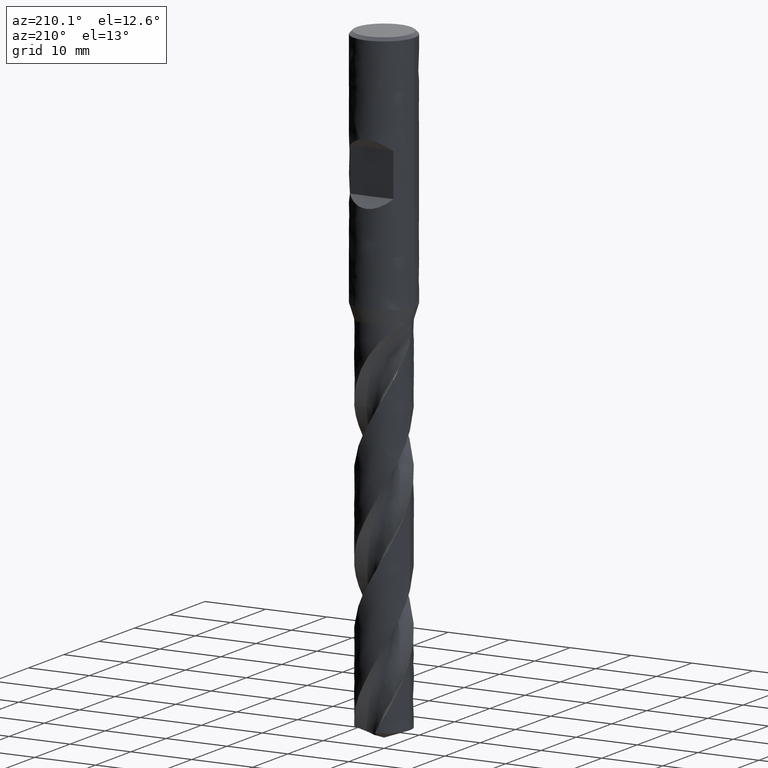
[diagram: clean part render]
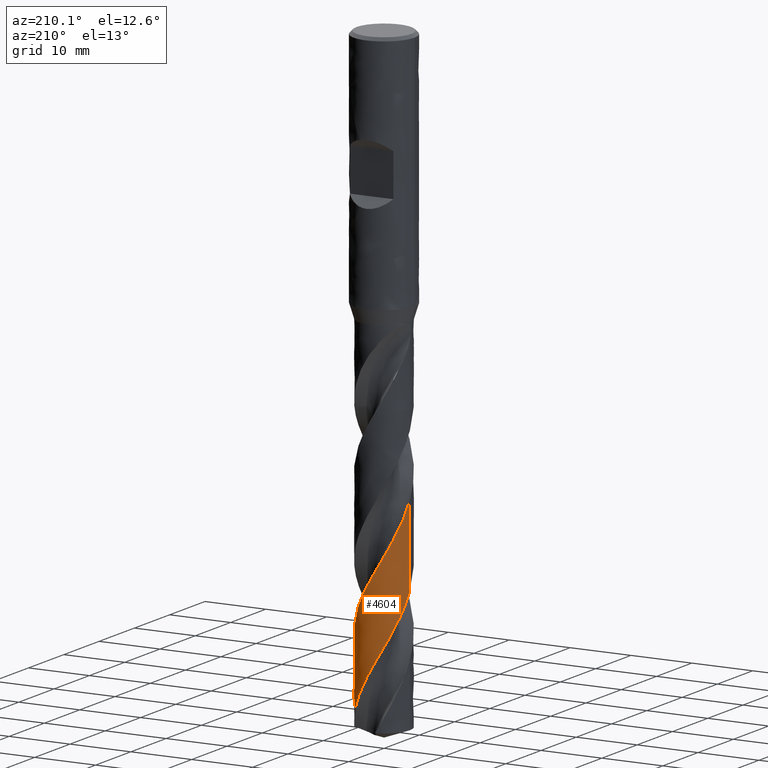
[diagram: same view with one face highlighted and labeled with its STEP entity id]
A machine part, auxiliary view. The second image highlights one B-rep face of the part: STEP entity #4604.
In plain terms, the highlighted face is a freeform B-spline surface patch.
Its self-contained STEP definition (entity closure, byte-faithful):
#3054 = VERTEX_POINT('', #3055);
#3055 = CARTESIAN_POINT('', (-4.25, 5.22805327345434E-15, -81.1305893600395));
#3209 = EDGE_CURVE('', #3210, #3054, #3212, .T.);
#3210 = VERTEX_POINT('', #3211);
#3211 = CARTESIAN_POINT('', (3.88587515378507, 1.72118397889239, -101.453126504369));
#3212 = B_SPLINE_CURVE_WITH_KNOTS('', 3, (#3213, #3214, #3215, #3216, #3217, #3218, #3219, #3220, #3221, #3222, #3223, #3224, #3225, #3226, #3227, #3228, #3229, #3230, #3231, #3232, #3233, #3234, #3235, #3236, #3237, #3238, #3239, #3240, #3241, #3242, #3243, #3244, #3245, #3246, #3247, #3248, #3249, #3250, #3251, #3252, #3253, #3254, #3255, #3256, #3257, #3258, #3259, #3260, #3261, #3262, #3263, #3264, #3265, #3266, #3267, #3268, #3269, #3270, #3271, #3272, #3273, #3274, #3275, #3276, #3277, #3278, #3279, #3280, #3281, #3282, #3283, #3284, #3285, #3286, #3287, #3288, #3289, #3290, #3291, #3292, #3293, #3294, #3295, #3296, #3297, #3298, #3299, #3300, #3301, #3302, #3303, #3304, #3305, #3306, #3307, #3308, #3309, #3310, #3311, #3312, #3313, #3314, #3315, #3316, #3317, #3318, #3319, #3320, #3321, #3322, #3323, #3324, #3325, #3326, #3327), .UNSPECIFIED., .F., .U., (4, 3, 3, 3, 3, 3, 3, 3, 3, 3, 3, 3, 3, 3, 3, 3, 3, 3, 3, 3, 3, 3, 3, 3, 3, 3, 3, 3, 3, 3, 3, 3, 3, 3, 3, 3, 3, 3, 4), (0., 0.6655601584287, 1.33099420303559, 1.99630412872044, 2.66149139599548, 3.32655658142823, 3.99150024516523, 4.65632292994898, 5.32102450195734, 5.98560406963803, 6.6500608517937, 7.31439387238585, 7.97860141746248, 8.64268104507377, 9.30663044948344, 9.74945735172696, 9.88077547496875, 9.93915482224495, 10.6054444018189, 11.271589255999, 11.9375941498602, 12.6034630905537, 13.2691991823351, 13.9348050921684, 14.6002834320381, 15.2656361838329, 15.9308645727825, 16.5959696531068, 17.2609523807694, 17.9258131228018, 18.5905515671618, 19.2551673747418, 19.9196599905109, 20.5840282414016, 21.2482703100889, 21.9123843692508, 22.5763682056284, 23.2402188812332, 23.3886577294178), .UNSPECIFIED.);
#3213 = CARTESIAN_POINT('', (3.88587515378508, 1.72118397889238, -101.453126504369));
#3214 = CARTESIAN_POINT('', (3.84147167729333, 1.82143262642628, -101.260260061237));
#3215 = CARTESIAN_POINT('', (3.79317585115278, 1.91998458950204, -101.067361202989));
#3216 = CARTESIAN_POINT('', (3.74114831494924, 2.01650918310642, -100.874500986124));
#3217 = CARTESIAN_POINT('', (3.68913063719553, 2.11301548672566, -100.681677313422));
#3218 = CARTESIAN_POINT('', (3.63336424937763, 2.20752936555173, -100.488821101133));
#3219 = CARTESIAN_POINT('', (3.57403470312025, 2.29973388479889, -100.296003555866));
#3220 = CARTESIAN_POINT('', (3.51471622320277, 2.39192120575926, -100.103221975555));
#3221 = CARTESIAN_POINT('', (3.45181447202794, 2.48183326417854, -99.9104083125711));
#3222 = CARTESIAN_POINT('', (3.38553994746635, 2.5691670370199, -99.7176327398753));
#3223 = CARTESIAN_POINT('', (3.31927764146257, 2.65648470876117, -99.5248927078265));
#3224 = CARTESIAN_POINT('', (3.24961897769654, 2.74125773786156, -99.3321208839621));
#3225 = CARTESIAN_POINT('', (3.17679749711592, 2.82319989769022, -99.1393871210712));
#3226 = CARTESIAN_POINT('', (3.10398938146416, 2.90512701867144, -98.9466887306145));
#3227 = CARTESIAN_POINT('', (3.02799299265399, 2.98425433603813, -98.7539580071462));
#3228 = CARTESIAN_POINT('', (2.94906185288974, 3.06031602744399, -98.5612659242325));
#3229 = CARTESIAN_POINT('', (2.87014513554026, 3.13636382074494, -98.3686090503016));
#3230 = CARTESIAN_POINT('', (2.78826680882801, 3.20937402731646, -98.1759196780348));
#3231 = CARTESIAN_POINT('', (2.70370004929082, 3.27910140792639, -97.9832688493559));
#3232 = CARTESIAN_POINT('', (2.6191486757158, 3.34881610243075, -97.790653071309));
#3233 = CARTESIAN_POINT('', (2.53187905301217, 3.41527449179696, -97.5980053265237));
#3234 = CARTESIAN_POINT('', (2.44218393179411, 3.47825209599401, -97.4053955709162));
#3235 = CARTESIAN_POINT('', (2.35250515060974, 3.5412182273689, -97.2128209036151));
#3236 = CARTESIAN_POINT('', (2.26036816523864, 3.60072842708272, -97.0202143958568));
#3237 = CARTESIAN_POINT('', (2.16608202500166, 3.65658155398792, -96.8276460392785));
#3238 = CARTESIAN_POINT('', (2.07181319075226, 3.71242442918998, -96.6351130281452));
#3239 = CARTESIAN_POINT('', (1.97536184908148, 3.76463185516935, -96.4425475951029));
#3240 = CARTESIAN_POINT('', (1.87704990379057, 3.81302814816254, -96.2500208166142));
#3241 = CARTESIAN_POINT('', (1.77875612228983, 3.86141549961655, -96.0575296087368));
#3242 = CARTESIAN_POINT('', (1.67856757055701, 3.90601026991375, -95.8650060023158));
#3243 = CARTESIAN_POINT('', (1.57681911200931, 3.94666206914175, -95.6725208060663));
#3244 = CARTESIAN_POINT('', (1.47508960510549, 3.98730629657521, -95.480071462064));
#3245 = CARTESIAN_POINT('', (1.37176344807089, 4.0240238833496, -95.2875902486712));
#3246 = CARTESIAN_POINT('', (1.26718771623984, 4.05669018928128, -95.0951469464385));
#3247 = CARTESIAN_POINT('', (1.16263173608974, 4.08935032538329, -94.9027399918233));
#3248 = CARTESIAN_POINT('', (1.05678755131972, 4.11797294132513, -94.7103011374636));
#3249 = CARTESIAN_POINT('', (0.950010105623939, 4.14246071788406, -94.5179005149347));
#3250 = CARTESIAN_POINT('', (0.843253223832179, 4.16694377842564, -94.3255369461853));
#3251 = CARTESIAN_POINT('', (0.735525058794706, 4.18730243842663, -94.1331409144592));
#3252 = CARTESIAN_POINT('', (0.627185245608721, 4.20346745767004, -93.9407835083708));
#3253 = CARTESIAN_POINT('', (0.518866677401123, 4.21962930702165, -93.7484638227548));
#3254 = CARTESIAN_POINT('', (0.409898136204946, 4.23160488924429, -93.5561118575384));
#3255 = CARTESIAN_POINT('', (0.300644353028747, 4.23935289554814, -93.3637981598243));
#3256 = CARTESIAN_POINT('', (0.227776580212056, 4.24452049658417, -93.2355328455517));
#3257 = CARTESIAN_POINT('', (0.154766974334746, 4.24780935579685, -93.1072585898276));
#3258 = CARTESIAN_POINT('', (0.0817247534192712, 4.24921417025297, -92.9789960944471));
#3259 = CARTESIAN_POINT('', (0.0600644447988226, 4.24963076101777, -92.9409604871017));
#3260 = CARTESIAN_POINT('', (0.038400597579339, 4.24988173400344, -92.9029247202182));
#3261 = CARTESIAN_POINT('', (0.0167360728423578, 4.24996704738588, -92.8648893283697));
#3262 = CARTESIAN_POINT('', (0.00710479894069359, 4.25000497466856, -92.8479801516719));
#3263 = CARTESIAN_POINT('', (-0.00252665368300172, 4.25001016238064, -92.8310709716408));
#3264 = CARTESIAN_POINT('', (-0.0121580377130293, 4.24998260962548, -92.8141618375839));
#3265 = CARTESIAN_POINT('', (-0.12208202822496, 4.24966814715705, -92.6211761269273));
#3266 = CARTESIAN_POINT('', (-0.232019546891489, 4.24508572011335, -92.4281579834897));
#3267 = CARTESIAN_POINT('', (-0.341599482988401, 4.23624949610174, -92.2351786430293));
#3268 = CARTESIAN_POINT('', (-0.451155617123088, 4.22741519141476, -92.0422412197951));
#3269 = CARTESIAN_POINT('', (-0.560393699105498, 4.21432578907006, -91.8492709483719));
#3270 = CARTESIAN_POINT('', (-0.66894601684718, 4.1970240917279, -91.6563396488582));
#3271 = CARTESIAN_POINT('', (-0.777475527211585, 4.17972602955767, -91.4634488851619));
#3272 = CARTESIAN_POINT('', (-0.885358870418918, 4.15821113843973, -91.2705256419272));
#3273 = CARTESIAN_POINT('', (-0.992231467612793, 4.13255087260629, -91.0776409016793));
#3274 = CARTESIAN_POINT('', (-1.09908224864846, 4.10689584486413, -90.8847955354535));
#3275 = CARTESIAN_POINT('', (-1.20496276674783, 4.07708748860004, -90.6919180422462));
#3276 = CARTESIAN_POINT('', (-1.30951430151274, 4.0432254814855, -90.4990788704382));
#3277 = CARTESIAN_POINT('', (-1.41404497698118, 4.00937023025118, -90.3062781723787));
#3278 = CARTESIAN_POINT('', (-1.51728606465527, 3.97145039970379, -90.1134449718058));
#3279 = CARTESIAN_POINT('', (-1.61888921766547, 3.92959256169473, -89.920650599435));
#3280 = CARTESIAN_POINT('', (-1.72047250259798, 3.88774290881332, -89.7278939272088));
#3281 = CARTESIAN_POINT('', (-1.82045494610716, 3.84194178659669, -89.5351044679507));
#3282 = CARTESIAN_POINT('', (-1.91849971470104, 3.79234213180879, -89.3423538790853));
#3283 = CARTESIAN_POINT('', (-2.01652569204416, 3.74275198328589, -89.1496402327789));
#3284 = CARTESIAN_POINT('', (-2.11265045215871, 3.68934664454856, -88.9568942163279));
#3285 = CARTESIAN_POINT('', (-2.20654876642511, 3.63230540309978, -88.7641865935176));
#3286 = CARTESIAN_POINT('', (-2.30042936034237, 3.57527492638859, -88.571515338201));
#3287 = CARTESIAN_POINT('', (-2.3921196029528, 3.5145884895419, -88.3788119429369));
#3288 = CARTESIAN_POINT('', (-2.48130885041586, 3.45045017191206, -88.1861469275293));
#3289 = CARTESIAN_POINT('', (-2.57048142728044, 3.38632384254505, -87.99351792365));
#3290 = CARTESIAN_POINT('', (-2.65718681895414, 3.31872333235241, -87.8008563298387));
#3291 = CARTESIAN_POINT('', (-2.74113248987201, 3.24787510119587, -87.6082335892435));
#3292 = CARTESIAN_POINT('', (-2.82506260038166, 3.17704000266889, -87.415646553747));
#3293 = CARTESIAN_POINT('', (-2.90626411775952, 3.10293298071058, -87.2230268065109));
#3294 = CARTESIAN_POINT('', (-2.98446307925108, 3.02580239417368, -87.0304458211647));
#3295 = CARTESIAN_POINT('', (-3.06264765526981, 2.94868599657148, -86.8379002629967));
#3296 = CARTESIAN_POINT('', (-3.13785944110473, 2.86851881944986, -86.6453224330539));
#3297 = CARTESIAN_POINT('', (-3.20984353493535, 2.78557076399681, -86.4527829072194));
#3298 = CARTESIAN_POINT('', (-3.28181442387404, 2.70263792468457, -86.2602787011826));
#3299 = CARTESIAN_POINT('', (-3.35058584042789, 2.61689407621499, -86.0677423220228));
#3300 = CARTESIAN_POINT('', (-3.41592463060593, 2.52862787258619, -85.8752443900133));
#3301 = CARTESIAN_POINT('', (-3.48125140205365, 2.44037790506606, -85.6827818669964));
#3302 = CARTESIAN_POINT('', (-3.5431707183187, 2.34957427882847, -85.4902866922242));
#3303 = CARTESIAN_POINT('', (-3.60147342754894, 2.25652147134897, -85.29783037064));
#3304 = CARTESIAN_POINT('', (-3.65976538058388, 2.16348583106775, -85.1054095550864));
#3305 = CARTESIAN_POINT('', (-3.71446299498487, 2.06816840692601, -84.912956117848));
#3306 = CARTESIAN_POINT('', (-3.76538120359342, 1.97088923880197, -84.7205413266009));
#3307 = CARTESIAN_POINT('', (-3.81628997410818, 1.87362810214325, -84.5281622009614));
#3308 = CARTESIAN_POINT('', (-3.86343950708983, 1.77437001061298, -84.3357508881505));
#3309 = CARTESIAN_POINT('', (-3.90666948052005, 1.67344960186234, -84.1433778128615));
#3310 = CARTESIAN_POINT('', (-3.94989136312991, 1.57254808113855, -83.9510407416659));
#3311 = CARTESIAN_POINT('', (-3.98921137882842, 1.46994702013481, -83.7586714521302));
#3312 = CARTESIAN_POINT('', (-4.02449577894807, 1.36599184669208, -83.5663406693638));
#3313 = CARTESIAN_POINT('', (-4.05977347756843, 1.26205641725853, -83.3740464156187));
#3314 = CARTESIAN_POINT('', (-4.09102994313231, 1.15672963895376, -83.1817194877938));
#3315 = CARTESIAN_POINT('', (-4.11815901419728, 1.05036485745945, -82.9894313802684));
#3316 = CARTESIAN_POINT('', (-4.14528285707861, 0.944020574072443, -82.797180329579));
#3317 = CARTESIAN_POINT('', (-4.16829065620531, 0.836600337168438, -82.6048967612582));
#3318 = CARTESIAN_POINT('', (-4.18710380718945, 0.728465309963209, -82.4126517166035));
#3319 = CARTESIAN_POINT('', (-4.20591326919748, 0.620351486411354, -82.2204443683122));
#3320 = CARTESIAN_POINT('', (-4.22053668127954, 0.511482993998187, -82.0282048997079));
#3321 = CARTESIAN_POINT('', (-4.2309234622906, 0.402227120218581, -81.8360036295089));
#3322 = CARTESIAN_POINT('', (-4.24130816025126, 0.292993157509397, -81.6438409049316));
#3323 = CARTESIAN_POINT('', (-4.24746183158766, 0.183331131058214, -81.4516459068292));
#3324 = CARTESIAN_POINT('', (-4.24936248763735, 0.0736101124929623, -81.2594894630927));
#3325 = CARTESIAN_POINT('', (-4.24978747958987, 0.0490761891032939, -81.2165227505055));
#3326 = CARTESIAN_POINT('', (-4.25, 0.0245381008733497, -81.1735557889244));
#3327 = CARTESIAN_POINT('', (-4.25, 4.45176451795472E-15, -81.1305893600395));
#3519 = VERTEX_POINT('', #3520);
#3520 = CARTESIAN_POINT('', (-4.25, 4.41977903570237E-15, -67.9304693202904));
#3584 = EDGE_CURVE('', #3519, #3054, #3585, .T.);
#3585 = LINE('', #3586, #3587);
#3586 = CARTESIAN_POINT('', (-4.25, 4.41977903570237E-15, -67.9304693202904));
#3587 = VECTOR('', #3588, 13.2001200397491);
#3588 = DIRECTION('', (0., 8.08274237751978E-16, -13.2001200397491));
#3680 = VERTEX_POINT('', #3681);
#3681 = CARTESIAN_POINT('', (0.912053588516359, -4.15098280551418, -101.453126504369));
#3805 = EDGE_CURVE('', #3806, #3680, #3808, .T.);
#3806 = VERTEX_POINT('', #3807);
#3807 = CARTESIAN_POINT('', (1.62357439669159, -3.9276591219717, -100.134753271127));
#3808 = B_SPLINE_CURVE_WITH_KNOTS('', 3, (#3809, #3810, #3811, #3812, #3813, #3814, #3815, #3816, #3817, #3818), .UNSPECIFIED., .F., .U., (4, 3, 3, 4), (0., 0.664360879611486, 1.32859889209631, 1.51506820967731), .UNSPECIFIED.);
#3809 = CARTESIAN_POINT('', (1.6235743966916, -3.92765912197169, -100.134753271127));
#3810 = CARTESIAN_POINT('', (1.52270124714659, -3.96935700303239, -100.327438514782));
#3811 = CARTESIAN_POINT('', (1.42020886629654, -4.00717085008376, -100.520162407009));
#3812 = CARTESIAN_POINT('', (1.31643699075408, -4.04097681871278, -100.71285455277));
#3813 = CARTESIAN_POINT('', (1.21268430681752, -4.07477653525449, -100.90551106198));
#3814 = CARTESIAN_POINT('', (1.10761537849526, -4.10458191950354, -101.098205261086));
#3815 = CARTESIAN_POINT('', (1.00158048039, -4.13029497025349, -101.290868205651));
#3816 = CARTESIAN_POINT('', (0.971813657778482, -4.13751330906601, -101.344953830263));
#3817 = CARTESIAN_POINT('', (0.941968790556219, -4.14440983986966, -101.399040464185));
#3818 = CARTESIAN_POINT('', (0.912053588516358, -4.15098280551418, -101.453126504369));
#4396 = EDGE_CURVE('', #3210, #3680, #4397, .T.);
#4397 = CIRCLE('', #4398, 4.25);
#4398 = AXIS2_PLACEMENT_3D('', #4399, #4400, #4401);
#4399 = CARTESIAN_POINT('', (3.80388297391395E-31, 6.21221233185333E-15, -101.453126504369));
#4400 = DIRECTION('', (3.74939945665464E-33, 6.12323399573677E-17, -1.));
#4401 = DIRECTION('', (-1., 6.12323399573677E-17, 0.));
#4604 = ADVANCED_FACE('', (#4605), #4786, .T.);
#4605 = FACE_OUTER_BOUND('', #4606, .T.);
#4606 = EDGE_LOOP('', (#4607, #4608, #4609, #4610, #4611));
#4607 = ORIENTED_EDGE('', *, *, #3805, .T.);
#4608 = ORIENTED_EDGE('', *, *, #4396, .F.);
#4609 = ORIENTED_EDGE('', *, *, #3209, .T.);
#4610 = ORIENTED_EDGE('', *, *, #3584, .F.);
#4611 = ORIENTED_EDGE('', *, *, #4612, .F.);
#4612 = EDGE_CURVE('', #3806, #3519, #4613, .T.);
#4613 = B_SPLINE_CURVE_WITH_KNOTS('', 3, (#4614, #4615, #4616, #4617, #4618, #4619, #4620, #4621, #4622, #4623, #4624, #4625, #4626, #4627, #4628, #4629, #4630, #4631, #4632, #4633, #4634, #4635, #4636, #4637, #4638, #4639, #4640, #4641, #4642, #4643, #4644, #4645, #4646, #4647, #4648, #4649, #4650, #4651, #4652, #4653, #4654, #4655, #4656, #4657, #4658, #4659, #4660, #4661, #4662, #4663, #4664, #4665, #4666, #4667, #4668, #4669, #4670, #4671, #4672, #4673, #4674, #4675, #4676, #4677, #4678, #4679, #4680, #4681, #4682, #4683, #4684, #4685, #4686, #4687, #4688, #4689, #4690, #4691, #4692, #4693, #4694, #4695, #4696, #4697, #4698, #4699, #4700, #4701, #4702, #4703, #4704, #4705, #4706, #4707, #4708, #4709, #4710, #4711, #4712, #4713, #4714, #4715, #4716, #4717, #4718, #4719, #4720, #4721, #4722, #4723, #4724, #4725, #4726, #4727, #4728, #4729, #4730, #4731, #4732, #4733, #4734, #4735, #4736, #4737, #4738, #4739, #4740, #4741, #4742, #4743, #4744, #4745, #4746, #4747, #4748, #4749, #4750, #4751, #4752, #4753, #4754, #4755, #4756, #4757, #4758, #4759, #4760, #4761, #4762, #4763, #4764, #4765, #4766, #4767, #4768, #4769, #4770, #4771, #4772, #4773, #4774, #4775, #4776, #4777, #4778, #4779, #4780, #4781, #4782, #4783, #4784, #4785), .UNSPECIFIED., .F., .U., (4, 3, 3, 3, 3, 3, 3, 3, 3, 3, 3, 3, 3, 3, 3, 3, 3, 3, 3, 3, 3, 3, 3, 3, 3, 3, 3, 3, 3, 3, 3, 3, 3, 3, 3, 3, 3, 3, 3, 3, 3, 3, 3, 3, 3, 3, 3, 3, 3, 3, 3, 3, 3, 3, 3, 3, 3, 4), (0., 0.998717161088281, 1.99701239495678, 2.99489483423727, 3.99237056229692, 4.98944264723916, 5.6541274414885, 6.31869106199591, 6.98313242369546, 7.64745047299626, 8.31164347996099, 8.97570890488399, 9.63964417328491, 10.0824646298226, 10.1408405294592, 10.1992306804518, 10.8655097462005, 11.5316453456729, 12.1976420997634, 12.8635038744501, 13.5292336562674, 14.1948340520746, 14.8603075601392, 15.5256560546639, 16.1908806747462, 16.855982427048, 17.5209621718301, 18.1858201851151, 18.850556087071, 19.5151694871304, 20.1796597443129, 20.8440255992789, 21.5082651725863, 22.1723765758943, 22.8363575084999, 23.500204939194, 23.6315224706114, 23.7629393462979, 24.4292130514932, 25.0953418965923, 25.7613303577232, 26.4271823261034, 27.0929009338328, 27.758488708782, 28.4239480095821, 29.0892807358236, 29.7544881506633, 30.4195711045422, 31.0845303266654, 31.7493661160713, 32.4140781693337, 33.0786658835961, 33.7431284815064, 34.4074647145177, 35.0716727058523, 35.7357502989421, 36.3996950365671, 37.068575013576), .UNSPECIFIED.);
#4614 = CARTESIAN_POINT('', (1.62357439669159, -3.9276591219717, -100.134753271127));
#4615 = CARTESIAN_POINT('', (1.77521448965213, -3.86497573606751, -99.8450943441306));
#4616 = CARTESIAN_POINT('', (1.92329891267825, -3.79346275064699, -99.5553290613398));
#4617 = CARTESIAN_POINT('', (2.06671485026814, -3.71364911208386, -99.265695032616));
#4618 = CARTESIAN_POINT('', (2.21007019904453, -3.63386919232313, -98.9761833653427));
#4619 = CARTESIAN_POINT('', (2.34887472825152, -3.54573228332751, -98.6865655532745));
#4620 = CARTESIAN_POINT('', (2.48208390326255, -3.4498926790793, -98.3970786225547));
#4621 = CARTESIAN_POINT('', (2.61523799634526, -3.35409270446028, -98.1077113945382));
#4622 = CARTESIAN_POINT('', (2.74290817738388, -3.2505194353523, -97.8182385472551));
#4623 = CARTESIAN_POINT('', (2.86413135096166, -3.13994452250968, -97.5288958937642));
#4624 = CARTESIAN_POINT('', (2.98530511709125, -3.029414677158, -97.2396711688981));
#4625 = CARTESIAN_POINT('', (3.10013595982801, -2.91179862584432, -96.9503414327086));
#4626 = CARTESIAN_POINT('', (3.20775540690248, -2.78797511636812, -96.6611413931206));
#4627 = CARTESIAN_POINT('', (3.31533130419636, -2.66420171388298, -96.3720583825511));
#4628 = CARTESIAN_POINT('', (3.41579017024224, -2.53412396576637, -96.0828705611228));
#4629 = CARTESIAN_POINT('', (3.508370865856, -2.39871504510495, -95.7938123406097));
#4630 = CARTESIAN_POINT('', (3.57008855061001, -2.3084464958911, -95.6011155369087));
#4631 = CARTESIAN_POINT('', (3.62833696643498, -2.21576908298273, -95.4083898102915));
#4632 = CARTESIAN_POINT('', (3.68291877861346, -2.12099252005667, -95.2157041319332));
#4633 = CARTESIAN_POINT('', (3.73749064038765, -2.026233235141, -95.0230535806681));
#4634 = CARTESIAN_POINT('', (3.78841719390325, -1.92934105119955, -94.8303733281425));
#4635 = CARTESIAN_POINT('', (3.83552689531172, -1.83063743962053, -94.6377339807276));
#4636 = CARTESIAN_POINT('', (3.88262793001658, -1.73195198640214, -94.4451300728947));
#4637 = CARTESIAN_POINT('', (3.92592984738043, -1.63142156450254, -94.252496191007));
#4638 = CARTESIAN_POINT('', (3.96528657662199, -1.52937973219912, -94.0599030868126));
#4639 = CARTESIAN_POINT('', (4.00463600172362, -1.42735683764376, -93.8673457256032));
#4640 = CARTESIAN_POINT('', (4.04005584321326, -1.32378622920256, -93.6747591445914));
#4641 = CARTESIAN_POINT('', (4.07142531434858, -1.21901431889936, -93.4822125561581));
#4642 = CARTESIAN_POINT('', (4.1027888809146, -1.11426212945792, -93.2897022101169));
#4643 = CARTESIAN_POINT('', (4.13011541457256, -1.00826963699179, -93.0971628116864));
#4644 = CARTESIAN_POINT('', (4.15331115297612, -0.901391405863365, -92.9046636447682));
#4645 = CARTESIAN_POINT('', (4.17650243580784, -0.794533704524922, -92.7122014542055));
#4646 = CARTESIAN_POINT('', (4.19557290861735, -0.686752234982784, -92.5197093552479));
#4647 = CARTESIAN_POINT('', (4.21045694521283, -0.578404972756473, -92.3272582317033));
#4648 = CARTESIAN_POINT('', (4.22533806454389, -0.470078946544415, -92.1348448284915));
#4649 = CARTESIAN_POINT('', (4.23603954442062, -0.361149671634544, -91.9424015393458));
#4650 = CARTESIAN_POINT('', (4.24252356378227, -0.251979782428923, -91.7499988725589));
#4651 = CARTESIAN_POINT('', (4.24684816672262, -0.17916747303822, -91.6216733552975));
#4652 = CARTESIAN_POINT('', (4.24929830652877, -0.106233259164208, -91.4933400982557));
#4653 = CARTESIAN_POINT('', (4.24986964863835, -0.03328617704962, -91.3650195241105));
#4654 = CARTESIAN_POINT('', (4.24994496722211, -0.0236697479045057, -91.3481033477076));
#4655 = CARTESIAN_POINT('', (4.24998764676878, -0.0140529810697925, -91.3311871864566));
#4656 = CARTESIAN_POINT('', (4.24999768479567, -0.00443612797657383, -91.314271086365));
#4657 = CARTESIAN_POINT('', (4.25000772527316, 0.00518307288684352, -91.2973508565321));
#4658 = CARTESIAN_POINT('', (4.24998510833259, 0.0148023863372456, -91.2804306398091));
#4659 = CARTESIAN_POINT('', (4.24992983319375, 0.0244215668984297, -91.2635104857421));
#4660 = CARTESIAN_POINT('', (4.24929909894768, 0.134184232838158, -91.0704377799445));
#4661 = CARTESIAN_POINT('', (4.24441279040394, 0.243952171721557, -90.877335160621));
#4662 = CARTESIAN_POINT('', (4.23528502781072, 0.353356382710792, -90.6842737378775));
#4663 = CARTESIAN_POINT('', (4.22615923064937, 0.462737036281571, -90.4912538860085));
#4664 = CARTESIAN_POINT('', (4.21279062074162, 0.571792614653669, -90.2982035978765));
#4665 = CARTESIAN_POINT('', (4.19522178208094, 0.680157481142214, -90.1051946281782));
#4666 = CARTESIAN_POINT('', (4.17765660536554, 0.788499760696068, -89.9122258881332));
#4667 = CARTESIAN_POINT('', (4.1558865578955, 0.896190639194804, -89.7192273475164));
#4668 = CARTESIAN_POINT('', (4.1299828978146, 1.00286652340127, -89.5262693838825));
#4669 = CARTESIAN_POINT('', (4.10408448770012, 1.10952078731132, -89.3333505275726));
#4670 = CARTESIAN_POINT('', (4.07404430648798, 1.21520085786424, -89.1404022740483));
#4671 = CARTESIAN_POINT('', (4.03996172075291, 1.31954889824183, -88.9474945017955));
#4672 = CARTESIAN_POINT('', (4.00588589116223, 1.42387625385001, -88.7546249693868));
#4673 = CARTESIAN_POINT('', (3.96775673670292, 1.52691065633122, -88.5617253441645));
#4674 = CARTESIAN_POINT('', (3.92570009333775, 1.62830549258056, -88.3688669978249));
#4675 = CARTESIAN_POINT('', (3.88365162377137, 1.72968062252614, -88.1760461339182));
#4676 = CARTESIAN_POINT('', (3.83766239937892, 1.82945250526744, -87.9831948794917));
#4677 = CARTESIAN_POINT('', (3.78788461469941, 1.92728569385121, -87.7903848287008));
#4678 = CARTESIAN_POINT('', (3.7381163194835, 2.02510023185645, -87.5976115345467));
#4679 = CARTESIAN_POINT('', (3.68454271614604, 2.12101242156821, -87.4048085361426));
#4680 = CARTESIAN_POINT('', (3.62734273048517, 2.21469743206525, -87.2120460127066));
#4681 = CARTESIAN_POINT('', (3.57015349021477, 2.30836484322189, -87.0193197009681));
#4682 = CARTESIAN_POINT('', (3.50931752526431, 2.39984145159654, -86.8265638881778));
#4683 = CARTESIAN_POINT('', (3.44503834987437, 2.4888171423178, -86.6338487138306));
#4684 = CARTESIAN_POINT('', (3.38077114196775, 2.57777626756372, -86.441169419154));
#4685 = CARTESIAN_POINT('', (3.31303862496756, 2.66426787993965, -86.2484598464357));
#4686 = CARTESIAN_POINT('', (3.24206611273133, 2.7480006041992, -86.0557916239166));
#4687 = CARTESIAN_POINT('', (3.17110670920272, 2.83171786292476, -85.8631589874478));
#4688 = CARTESIAN_POINT('', (3.09688346318772, 2.91270677826398, -85.6704960313327));
#4689 = CARTESIAN_POINT('', (3.01964389736651, 2.99069402197839, -85.4778741523051));
#4690 = CARTESIAN_POINT('', (2.94241850051692, 3.06866695956573, -85.2852876081982));
#4691 = CARTESIAN_POINT('', (2.86214938443728, 3.14366801600203, -85.0926714415487));
#4692 = CARTESIAN_POINT('', (2.77910624993328, 3.21544218601141, -84.9000956792711));
#4693 = CARTESIAN_POINT('', (2.69607831734356, 3.28720321700831, -84.7075551700008));
#4694 = CARTESIAN_POINT('', (2.61024588648823, 3.35576578380418, -84.5149850344223));
#4695 = CARTESIAN_POINT('', (2.5218970104729, 3.42089688072702, -84.3224556933067));
#4696 = CARTESIAN_POINT('', (2.43356436107809, 3.48601601532911, -84.1299617131454));
#4697 = CARTESIAN_POINT('', (2.34268434247552, 3.54772849197623, -83.9374373251498));
#4698 = CARTESIAN_POINT('', (2.24956023504994, 3.60582566812125, -83.7449543134865));
#4699 = CARTESIAN_POINT('', (2.15645328914633, 3.6639121377372, -83.5525067738565));
#4700 = CARTESIAN_POINT('', (2.0610700303859, 3.71840522206994, -83.3600290097691));
#4701 = CARTESIAN_POINT('', (1.96372995925354, 3.76911987699119, -83.1675921859391));
#4702 = CARTESIAN_POINT('', (1.86640792377378, 3.81982513524892, -82.9751910177611));
#4703 = CARTESIAN_POINT('', (1.76709351678697, 3.86677220231438, -82.7827602861889));
#4704 = CARTESIAN_POINT('', (1.6661215506324, 3.90980037578881, -82.5903699286876));
#4705 = CARTESIAN_POINT('', (1.56516848789479, 3.95282049376493, -82.3980155894523));
#4706 = CARTESIAN_POINT('', (1.4625202891907, 3.99193949754853, -82.2056314794026));
#4707 = CARTESIAN_POINT('', (1.35852191556263, 4.02702349197719, -82.0132883098668));
#4708 = CARTESIAN_POINT('', (1.25454330978838, 4.06210081769316, -81.8209817006303));
#4709 = CARTESIAN_POINT('', (1.14917779460058, 4.09315728368297, -81.6286446148801));
#4710 = CARTESIAN_POINT('', (1.04277780015013, 4.12008670533937, -81.4363488826748));
#4711 = CARTESIAN_POINT('', (0.936398336375327, 4.14701093076222, -81.2440902553709));
#4712 = CARTESIAN_POINT('', (0.828946713472187, 4.16981929589553, -81.0518015199046));
#4713 = CARTESIAN_POINT('', (0.720784115985801, 4.18843291197829, -80.8595535815496));
#4714 = CARTESIAN_POINT('', (0.612642768021687, 4.20704287124752, -80.667343412044));
#4715 = CARTESIAN_POINT('', (0.50375005392925, 4.22146668102673, -80.4751037050962));
#4716 = CARTESIAN_POINT('', (0.39447385842485, 4.23165338550076, -80.2829043941377));
#4717 = CARTESIAN_POINT('', (0.285219634305883, 4.24183804180675, -80.0907437273242));
#4718 = CARTESIAN_POINT('', (0.175540981221785, 4.24779117384058, -79.8985531261552));
#4719 = CARTESIAN_POINT('', (0.0658067342882726, 4.24949049577987, -79.7064035960049));
#4720 = CARTESIAN_POINT('', (0.0440998936002131, 4.24982664344247, -79.6683939558441));
#4721 = CARTESIAN_POINT('', (0.022389955535268, 4.24999647299577, -79.6303842496688));
#4722 = CARTESIAN_POINT('', (0.000679806450254825, 4.24999994563097, -79.5923750127953));
#4723 = CARTESIAN_POINT('', (-0.0210467667852166, 4.25000342089328, -79.554337021194));
#4724 = CARTESIAN_POINT('', (-0.0427738561807623, 4.2498402877271, -79.5162989443015));
#4725 = CARTESIAN_POINT('', (-0.0644986170546068, 4.24951055162804, -79.4782613465754));
#4726 = CARTESIAN_POINT('', (-0.17464152561398, 4.24783881433168, -79.2854135784233));
#4727 = CARTESIAN_POINT('', (-0.284749677132293, 4.24188121046523, -79.0925355732641));
#4728 = CARTESIAN_POINT('', (-0.394449360942737, 4.23165566907942, -78.899699024944));
#4729 = CARTESIAN_POINT('', (-0.504125194034437, 4.22143235091344, -78.7069044028184));
#4730 = CARTESIAN_POINT('', (-0.613432347620461, 4.20693929919198, -78.5140789161425));
#4731 = CARTESIAN_POINT('', (-0.722001321736278, 4.18822326188698, -78.321295206441));
#4732 = CARTESIAN_POINT('', (-0.830547415378557, 4.16951116891137, -78.128552125129));
#4733 = CARTESIAN_POINT('', (-0.938395006852074, 4.14657103572658, -77.9357785946986));
#4734 = CARTESIAN_POINT('', (-1.04517768773241, 4.11947855936481, -77.7430462698261));
#4735 = CARTESIAN_POINT('', (-1.15193848375634, 4.09239163554163, -77.5503534449851));
#4736 = CARTESIAN_POINT('', (-1.25767536831807, 4.06114373728013, -77.3576306807174));
#4737 = CARTESIAN_POINT('', (-1.36202753288856, 4.0258391671369, -77.1649488008441));
#4738 = CARTESIAN_POINT('', (-1.46635879720908, 3.99054166799546, -76.9723055124026));
#4739 = CARTESIAN_POINT('', (-1.56934538391208, 3.95117581221506, -76.7796318476751));
#4740 = CARTESIAN_POINT('', (-1.67063747989236, 3.90787287546293, -76.5869997379362));
#4741 = CARTESIAN_POINT('', (-1.77190966907364, 3.86457844897857, -76.394405485926));
#4742 = CARTESIAN_POINT('', (-1.87152452990633, 3.81733291414927, -76.20178038097));
#4743 = CARTESIAN_POINT('', (-1.96914452667165, 3.76629391220057, -76.0091969806335));
#4744 = CARTESIAN_POINT('', (-2.06674568047366, 3.71526476198384, -75.8166507534385));
#4745 = CARTESIAN_POINT('', (-2.16238845602914, 3.66042487496474, -75.6240741840145));
#4746 = CARTESIAN_POINT('', (-2.25574689373297, 3.60195862711027, -75.4315387094295));
#4747 = CARTESIAN_POINT('', (-2.34908757407278, 3.54350349990511, -75.2390398563068));
#4748 = CARTESIAN_POINT('', (-2.44018041317423, 3.48140105036482, -75.0465110251736));
#4749 = CARTESIAN_POINT('', (-2.52871404203995, 3.41586084224607, -74.8540231797493));
#4750 = CARTESIAN_POINT('', (-2.61723099613121, 3.3503329782298, -74.6615715882486));
#4751 = CARTESIAN_POINT('', (-2.70322291179284, 3.2813441328105, -74.4690894542247));
#4752 = CARTESIAN_POINT('', (-2.78639730093633, 3.20912606192633, -74.2766489740141));
#4753 = CARTESIAN_POINT('', (-2.86955612806989, 3.13692150311417, -74.0842444996064));
#4754 = CARTESIAN_POINT('', (-2.94992843750731, 3.0614629280034, -73.8918092144895));
#4755 = CARTESIAN_POINT('', (-3.02724095421537, 2.98300388955852, -73.6994155434341));
#4756 = CARTESIAN_POINT('', (-3.10453908773503, 2.90455944760047, -73.5070576652172));
#4757 = CARTESIAN_POINT('', (-3.17880712886185, 2.82308659282409, -73.3146695457499));
#4758 = CARTESIAN_POINT('', (-3.24979093612436, 2.73886087114406, -73.1223224320574));
#4759 = CARTESIAN_POINT('', (-3.32076156705376, 2.65465078382076, -72.9300110226999));
#4760 = CARTESIAN_POINT('', (-3.38847634036362, 2.56765662051611, -72.7376695504671));
#4761 = CARTESIAN_POINT('', (-3.45270318192001, 2.47817286272758, -72.5453692193537));
#4762 = CARTESIAN_POINT('', (-3.51691806987551, 2.38870575923968, -72.3531046782833));
#4763 = CARTESIAN_POINT('', (-3.57767015982152, 2.29671687005641, -72.1608094276165));
#4764 = CARTESIAN_POINT('', (-3.63475214878847, 2.20251601966424, -71.968555911353));
#4765 = CARTESIAN_POINT('', (-3.69182346017347, 2.1083327901945, -71.7763383574433));
#4766 = CARTESIAN_POINT('', (-3.74524662855193, 2.01190443264714, -71.5840900658241));
#4767 = CARTESIAN_POINT('', (-3.79483891370385, 1.91355627537814, -71.3918832799324));
#4768 = CARTESIAN_POINT('', (-3.84442186253239, 1.81522663329141, -71.1997126791994));
#4769 = CARTESIAN_POINT('', (-3.89019386378086, 1.71494111785289, -71.0075119256658));
#4770 = CARTESIAN_POINT('', (-3.93199716096906, 1.61304008819722, -70.8153521181804));
#4771 = CARTESIAN_POINT('', (-3.97379250816964, 1.51115843768097, -70.6232288548959));
#4772 = CARTESIAN_POINT('', (-4.01163667197584, 1.40762289261265, -70.4310754242103));
#4773 = CARTESIAN_POINT('', (-4.04539895871351, 1.30278442761637, -70.2389632842866));
#4774 = CARTESIAN_POINT('', (-4.07915472807031, 1.19796620035494, -70.0468882291727));
#4775 = CARTESIAN_POINT('', (-4.10884263847444, 1.09180707570258, -69.8547823590449));
#4776 = CARTESIAN_POINT('', (-4.1343602110141, 0.984665245443168, -69.6627182519649));
#4777 = CARTESIAN_POINT('', (-4.1598727739081, 0.877544449418217, -69.47069185118));
#4778 = CARTESIAN_POINT('', (-4.18122586439481, 0.769402465412112, -69.2786348142999));
#4779 = CARTESIAN_POINT('', (-4.19834498458733, 0.660605321194731, -69.086619159889));
#4780 = CARTESIAN_POINT('', (-4.21546067992604, 0.551829942950643, -68.8946419201592));
#4781 = CARTESIAN_POINT('', (-4.22835051531522, 0.442358578092675, -68.7026345941606));
#4782 = CARTESIAN_POINT('', (-4.23696842222075, 0.332563661732424, -68.5106681946649));
#4783 = CARTESIAN_POINT('', (-4.24565038782147, 0.221952616913476, -68.3172748689787));
#4784 = CARTESIAN_POINT('', (-4.25, 0.1109709487091, -68.1238513430464));
#4785 = CARTESIAN_POINT('', (-4.25, 3.37547550316433E-15, -67.9304693202904));
#4786 = (
   BOUNDED_SURFACE ()
   B_SPLINE_SURFACE (2, 1, ((#4787, #4788), (#4789, #4790), (#4791, #4792), (#4793, #4794), (#4795, #4796), (#4797, #4798), (#4799, #4800)), .UNSPECIFIED., .F., .F., .U.)
   B_SPLINE_SURFACE_WITH_KNOTS ((3, 2, 2, 3), (2, 2), (0., 6.67588438887831, 13.3517687777566, 19.0467850887636), (0.436149801447111, 1.), .UNSPECIFIED.)
   GEOMETRIC_REPRESENTATION_ITEM ()
   RATIONAL_B_SPLINE_SURFACE (((1., 1.), (0.707106781186548, 0.707106781186548), (1., 1.), (0.707106781186548, 0.707106781186548), (1., 1.), (0.750140721234658, 0.750140721234658), (0.926577820637766, 0.926577820637766)))
   REPRESENTATION_ITEM ('')
   SURFACE ()
);
#4787 = CARTESIAN_POINT('', (-4.25, 4.41977903570237E-15, -67.9304693202904));
#4788 = CARTESIAN_POINT('', (-4.25, 6.47244977667214E-15, -101.453126504369));
#4789 = CARTESIAN_POINT('', (-4.25, 4.25, -67.9304693202903));
#4790 = CARTESIAN_POINT('', (-4.25, 4.25000000000001, -101.453126504369));
#4791 = CARTESIAN_POINT('', (3.45126646034193E-31, 4.25, -67.9304693202904));
#4792 = CARTESIAN_POINT('', (3.94430452610506E-31, 4.25000000000001, -101.453126504369));
#4793 = CARTESIAN_POINT('', (4.25, 4.25, -67.9304693202903));
#4794 = CARTESIAN_POINT('', (4.25, 4.25000000000001, -101.453126504369));
#4795 = CARTESIAN_POINT('', (4.25, 4.41977903570237E-15, -67.9304693202904));
#4796 = CARTESIAN_POINT('', (4.25, 6.47244977667214E-15, -101.453126504369));
#4797 = CARTESIAN_POINT('', (4.25, -3.41756950425339, -67.9304693202903));
#4798 = CARTESIAN_POINT('', (4.25, -3.41756950425339, -101.453126504369));
#4799 = CARTESIAN_POINT('', (0.912053588516358, -4.15098280551418, -67.9304693202904));
#4800 = CARTESIAN_POINT('', (0.912053588516358, -4.15098280551418, -101.453126504369));